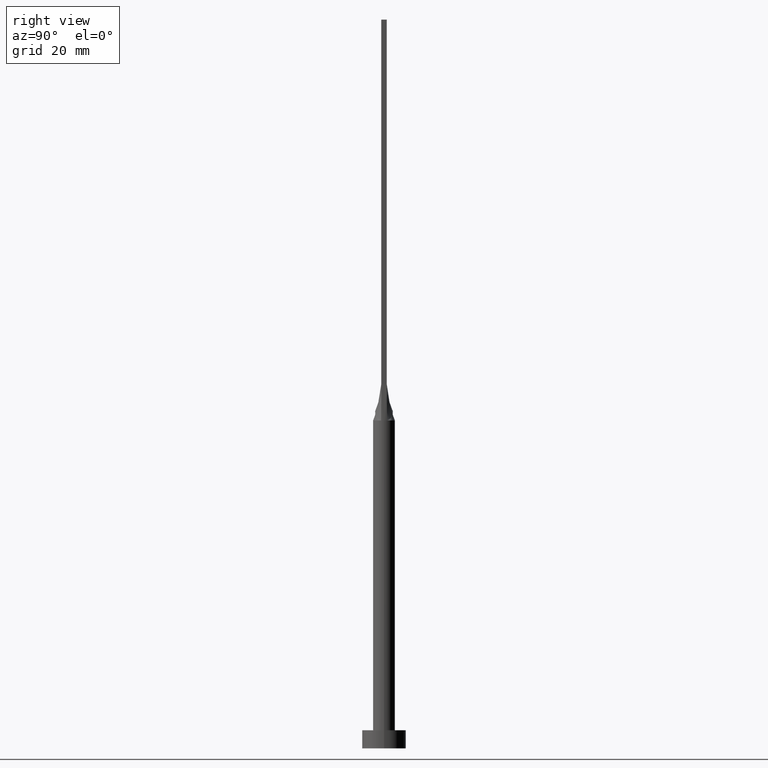
[diagram: clean part render]
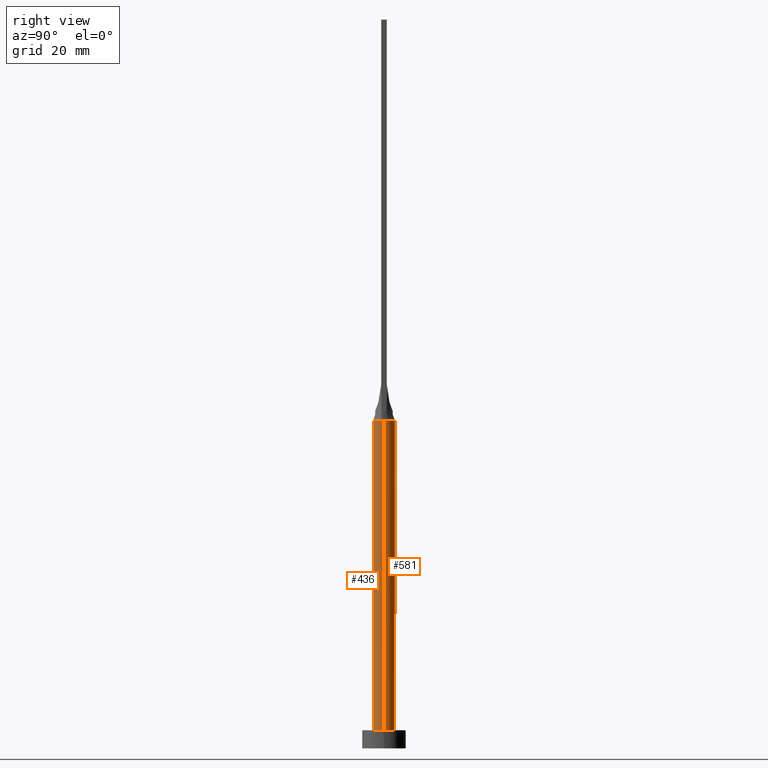
[diagram: same view with one multi-face feature highlighted, each face labeled with its STEP entity id]
A machine part, right view. The highlighted faces form ONE feature: a constant-radius fillet chain: 2 tangent blend faces with common blend radius 3 mm. The faces share edges in the B-rep.
Their STEP definitions:
[1] entity #581 (Cylinder):
#1 = DIRECTION ( 'NONE',  ( 0.000000000000000000, 0.000000000000000000, 1.000000000000000000 ) ) ;
#7 = EDGE_LOOP ( 'NONE', ( #388, #122, #519, #390, #51, #459 ) ) ;
#33 = CYLINDRICAL_SURFACE ( 'NONE', #500, 3.000000000000000444 ) ;
#36 = EDGE_CURVE ( 'NONE', #101, #415, #276, .T. ) ;
#51 = ORIENTED_EDGE ( 'NONE', *, *, #82, .F. ) ;
#57 = CARTESIAN_POINT ( 'NONE',  ( 2.442412046818595250, 1.765588549521970529, 90.00000000000004263 ) ) ;
#59 = LINE ( 'NONE', #252, #324 ) ;
#74 = CARTESIAN_POINT ( 'NONE',  ( 2.894482401701604424, 0.7894050286368272662, 90.00000000000001421 ) ) ;
#78 = AXIS2_PLACEMENT_3D ( 'NONE', #576, #350, #268 ) ;
#82 = EDGE_CURVE ( 'NONE', #415, #153, #200, .T. ) ;
#101 = VERTEX_POINT ( 'NONE', #448 ) ;
#112 = CARTESIAN_POINT ( 'NONE',  ( 3.000000000000000444, 3.673940397442060361E-16, 90.00000000000001421 ) ) ;
#122 = ORIENTED_EDGE ( 'NONE', *, *, #543, .T. ) ;
#130 = DIRECTION ( 'NONE',  ( 1.000000000000000000, 0.000000000000000000, 0.000000000000000000 ) ) ;
#134 = CARTESIAN_POINT ( 'NONE',  ( -1.751288851749021491, 2.458468820606022565, 89.99999999999998579 ) ) ;
#143 = EDGE_CURVE ( 'NONE', #153, #185, #59, .T. ) ;
#144 = CARTESIAN_POINT ( 'NONE',  ( -2.894506632021299541, 0.7894116946786272626, 90.00000000000001421 ) ) ;
#153 = VERTEX_POINT ( 'NONE', #472 ) ;
#174 = VERTEX_POINT ( 'NONE', #202 ) ;
#185 = VERTEX_POINT ( 'NONE', #205 ) ;
#186 = VECTOR ( 'NONE', #465, 1000.000000000000000 ) ;
#187 = EDGE_CURVE ( 'NONE', #269, #101, #441, .T. ) ;
#197 = CARTESIAN_POINT ( 'NONE',  ( -2.894506632021299541, 0.7894116946786272626, 90.00000000000001421 ) ) ;
#200 = CIRCLE ( 'NONE', #284, 3.000000000000000444 ) ;
#202 = CARTESIAN_POINT ( 'NONE',  ( 3.000000000000000444, 3.673940397442060361E-16, 5.000000000000000000 ) ) ;
#203 = CARTESIAN_POINT ( 'NONE',  ( 2.248179627679386172, 2.014142483996539834, 89.99999999999998579 ) ) ;
#205 = CARTESIAN_POINT ( 'NONE',  ( -3.000000000000000444, 0.000000000000000000, 5.000000000000000000 ) ) ;
#224 = CARTESIAN_POINT ( 'NONE',  ( 0.000000000000000000, 0.000000000000000000, 90.00000000000001421 ) ) ;
#225 = DIRECTION ( 'NONE',  ( -0.000000000000000000, -0.000000000000000000, -1.000000000000000000 ) ) ;
#229 = CARTESIAN_POINT ( 'NONE',  ( 0.3818979204996085230, 3.000000000000001332, 90.00000000000001421 ) ) ;
#238 = AXIS2_PLACEMENT_3D ( 'NONE', #479, #526, #130 ) ;
#252 = CARTESIAN_POINT ( 'NONE',  ( -3.000000000000000444, 0.000000000000000000, 90.00000000000001421 ) ) ;
#263 = CARTESIAN_POINT ( 'NONE',  ( -2.733316749964668002, 1.269511353635830453, 90.00000000000004263 ) ) ;
#268 = DIRECTION ( 'NONE',  ( 1.000000000000000000, 0.000000000000000000, 0.000000000000000000 ) ) ;
#269 = VERTEX_POINT ( 'NONE', #494 ) ;
#270 = FACE_OUTER_BOUND ( 'NONE', #7, .T. ) ;
#276 = B_SPLINE_CURVE_WITH_KNOTS ( 'NONE', 3,
 ( #74, #435, #345, #57, #203, #374, #569, #351, #229, #403, #524, #575, #134, #527, #480, #263, #499, #197 ),
 .UNSPECIFIED., .F., .F.,
 ( 4, 2, 2, 2, 2, 2, 2, 2, 4 ),
 ( 0.000000000000000000, 0.1250000000000000000, 0.2500000000000000000, 0.3750000000000000000, 0.5000000000000000000, 0.6250000000000000000, 0.7500000000000000000, 0.8750000000000000000, 1.000000000000000000 ),
 .UNSPECIFIED. ) ;
#283 = DIRECTION ( 'NONE',  ( 1.000000000000000000, 0.000000000000000000, 0.000000000000000000 ) ) ;
#284 = AXIS2_PLACEMENT_3D ( 'NONE', #411, #1, #283 ) ;
#295 = LINE ( 'NONE', #112, #186 ) ;
#324 = VECTOR ( 'NONE', #422, 1000.000000000000000 ) ;
#345 = CARTESIAN_POINT ( 'NONE',  ( 2.733316749964668446, 1.269511353635831341, 90.00000000000002842 ) ) ;
#350 = DIRECTION ( 'NONE',  ( 0.000000000000000000, 0.000000000000000000, 1.000000000000000000 ) ) ;
#351 = CARTESIAN_POINT ( 'NONE',  ( 0.7628506052746800714, 2.924692134573154689, 90.00000000000004263 ) ) ;
#352 = DIRECTION ( 'NONE',  ( -1.000000000000000000, 0.000000000000000000, 0.000000000000000000 ) ) ;
#374 = CARTESIAN_POINT ( 'NONE',  ( 1.751288851749022379, 2.458468820606022565, 89.99999999999997158 ) ) ;
#388 = ORIENTED_EDGE ( 'NONE', *, *, #187, .F. ) ;
#390 = ORIENTED_EDGE ( 'NONE', *, *, #143, .F. ) ;
#403 = CARTESIAN_POINT ( 'NONE',  ( -0.3818979204996078569, 3.000000000000000888, 89.99999999999998579 ) ) ;
#411 = CARTESIAN_POINT ( 'NONE',  ( 0.000000000000000000, 0.000000000000000000, 90.00000000000001421 ) ) ;
#415 = VERTEX_POINT ( 'NONE', #144 ) ;
#422 = DIRECTION ( 'NONE',  ( -0.000000000000000000, -0.000000000000000000, -1.000000000000000000 ) ) ;
#435 = CARTESIAN_POINT ( 'NONE',  ( 2.830829925251657997, 1.022044525068634302, 90.00000000000004263 ) ) ;
#441 = CIRCLE ( 'NONE', #238, 3.000000000000000444 ) ;
#448 = CARTESIAN_POINT ( 'NONE',  ( 2.894482401701604424, 0.7894050286368272662, 90.00000000000001421 ) ) ;
#459 = ORIENTED_EDGE ( 'NONE', *, *, #36, .F. ) ;
#465 = DIRECTION ( 'NONE',  ( -0.000000000000000000, -0.000000000000000000, -1.000000000000000000 ) ) ;
#472 = CARTESIAN_POINT ( 'NONE',  ( -3.000000000000000000, -1.912111867153115409E-16, 90.00000000000001421 ) ) ;
#479 = CARTESIAN_POINT ( 'NONE',  ( 0.000000000000000000, 0.000000000000000000, 90.00000000000001421 ) ) ;
#480 = CARTESIAN_POINT ( 'NONE',  ( -2.442412046818596139, 1.765588549521969641, 90.00000000000004263 ) ) ;
#494 = CARTESIAN_POINT ( 'NONE',  ( 3.000000000000000888, 4.817174831141495148E-17, 90.00000000000001421 ) ) ;
#496 = CIRCLE ( 'NONE', #78, 3.000000000000000444 ) ;
#499 = CARTESIAN_POINT ( 'NONE',  ( -2.830829925251659329, 1.022044525068634302, 90.00000000000005684 ) ) ;
#500 = AXIS2_PLACEMENT_3D ( 'NONE', #224, #225, #352 ) ;
#519 = ORIENTED_EDGE ( 'NONE', *, *, #552, .T. ) ;
#524 = CARTESIAN_POINT ( 'NONE',  ( -0.7628506052746797383, 2.924692134573155133, 90.00000000000002842 ) ) ;
#526 = DIRECTION ( 'NONE',  ( 0.000000000000000000, 0.000000000000000000, 1.000000000000000000 ) ) ;
#527 = CARTESIAN_POINT ( 'NONE',  ( -2.248179627679385728, 2.014142483996540278, 89.99999999999997158 ) ) ;
#543 = EDGE_CURVE ( 'NONE', #269, #174, #295, .T. ) ;
#552 = EDGE_CURVE ( 'NONE', #174, #185, #496, .T. ) ;
#569 = CARTESIAN_POINT ( 'NONE',  ( 1.447928580458859305, 2.653161878569118670, 90.00000000000004263 ) ) ;
#575 = CARTESIAN_POINT ( 'NONE',  ( -1.447928580458858416, 2.653161878569119558, 90.00000000000004263 ) ) ;
#576 = CARTESIAN_POINT ( 'NONE',  ( 0.000000000000000000, 0.000000000000000000, 5.000000000000000000 ) ) ;
#581 = ADVANCED_FACE ( 'NONE', ( #270 ), #33, .T. ) ;
[2] entity #436 (Cylinder):
#12 = CIRCLE ( 'NONE', #311, 3.000000000000000444 ) ;
#31 = CARTESIAN_POINT ( 'NONE',  ( 0.000000000000000000, 0.000000000000000000, 90.00000000000001421 ) ) ;
#39 = CARTESIAN_POINT ( 'NONE',  ( 0.000000000000000000, 0.000000000000000000, 90.00000000000001421 ) ) ;
#59 = LINE ( 'NONE', #252, #324 ) ;
#84 = DIRECTION ( 'NONE',  ( 1.000000000000000000, -5.329070518200751394E-15, 0.000000000000000000 ) ) ;
#87 = ORIENTED_EDGE ( 'NONE', *, *, #98, .T. ) ;
#92 = DIRECTION ( 'NONE',  ( 1.000000000000000000, 0.000000000000000000, 0.000000000000000000 ) ) ;
#94 = DIRECTION ( 'NONE',  ( 1.000000000000000000, 0.000000000000000000, 0.000000000000000000 ) ) ;
#98 = EDGE_CURVE ( 'NONE', #185, #174, #246, .T. ) ;
#112 = CARTESIAN_POINT ( 'NONE',  ( 3.000000000000000444, 3.673940397442060361E-16, 90.00000000000001421 ) ) ;
#117 = VERTEX_POINT ( 'NONE', #513 ) ;
#143 = EDGE_CURVE ( 'NONE', #153, #185, #59, .T. ) ;
#149 = ORIENTED_EDGE ( 'NONE', *, *, #543, .F. ) ;
#153 = VERTEX_POINT ( 'NONE', #472 ) ;
#157 = ORIENTED_EDGE ( 'NONE', *, *, #491, .F. ) ;
#159 = ORIENTED_EDGE ( 'NONE', *, *, #348, .F. ) ;
#168 = EDGE_LOOP ( 'NONE', ( #149, #159, #528, #157, #506, #87 ) ) ;
#169 = DIRECTION ( 'NONE',  ( -1.000000000000000000, 0.000000000000000000, 0.000000000000000000 ) ) ;
#174 = VERTEX_POINT ( 'NONE', #202 ) ;
#185 = VERTEX_POINT ( 'NONE', #205 ) ;
#186 = VECTOR ( 'NONE', #465, 1000.000000000000000 ) ;
#202 = CARTESIAN_POINT ( 'NONE',  ( 3.000000000000000444, 3.673940397442060361E-16, 5.000000000000000000 ) ) ;
#205 = CARTESIAN_POINT ( 'NONE',  ( -3.000000000000000444, 0.000000000000000000, 5.000000000000000000 ) ) ;
#218 = DIRECTION ( 'NONE',  ( 1.000000000000000000, 0.000000000000000000, 0.000000000000000000 ) ) ;
#246 = CIRCLE ( 'NONE', #485, 3.000000000000000444 ) ;
#252 = CARTESIAN_POINT ( 'NONE',  ( -3.000000000000000444, 0.000000000000000000, 90.00000000000001421 ) ) ;
#269 = VERTEX_POINT ( 'NONE', #494 ) ;
#271 = FACE_OUTER_BOUND ( 'NONE', #168, .T. ) ;
#273 = CYLINDRICAL_SURFACE ( 'NONE', #434, 3.000000000000000444 ) ;
#275 = CIRCLE ( 'NONE', #320, 3.000000000000000444 ) ;
#279 = DIRECTION ( 'NONE',  ( -0.000000000000000000, -0.000000000000000000, -1.000000000000000000 ) ) ;
#295 = LINE ( 'NONE', #112, #186 ) ;
#311 = AXIS2_PLACEMENT_3D ( 'NONE', #395, #347, #84 ) ;
#314 = VERTEX_POINT ( 'NONE', #460 ) ;
#316 = CARTESIAN_POINT ( 'NONE',  ( 0.000000000000000000, 0.000000000000000000, 5.000000000000000000 ) ) ;
#320 = AXIS2_PLACEMENT_3D ( 'NONE', #481, #439, #218 ) ;
#324 = VECTOR ( 'NONE', #422, 1000.000000000000000 ) ;
#347 = DIRECTION ( 'NONE',  ( 0.000000000000000000, 0.000000000000000000, 1.000000000000000000 ) ) ;
#348 = EDGE_CURVE ( 'NONE', #117, #269, #12, .T. ) ;
#368 = EDGE_CURVE ( 'NONE', #314, #117, #371, .T. ) ;
#371 = CIRCLE ( 'NONE', #412, 3.000000000000000444 ) ;
#395 = CARTESIAN_POINT ( 'NONE',  ( 0.000000000000000000, 0.000000000000000000, 90.00000000000001421 ) ) ;
#412 = AXIS2_PLACEMENT_3D ( 'NONE', #31, #578, #92 ) ;
#422 = DIRECTION ( 'NONE',  ( -0.000000000000000000, -0.000000000000000000, -1.000000000000000000 ) ) ;
#434 = AXIS2_PLACEMENT_3D ( 'NONE', #39, #279, #169 ) ;
#436 = ADVANCED_FACE ( 'NONE', ( #271 ), #273, .T. ) ;
#439 = DIRECTION ( 'NONE',  ( 0.000000000000000000, 0.000000000000000000, 1.000000000000000000 ) ) ;
#460 = CARTESIAN_POINT ( 'NONE',  ( -2.894489875237701959, -0.7894071376467488577, 90.00000000000001421 ) ) ;
#465 = DIRECTION ( 'NONE',  ( -0.000000000000000000, -0.000000000000000000, -1.000000000000000000 ) ) ;
#472 = CARTESIAN_POINT ( 'NONE',  ( -3.000000000000000000, -1.912111867153115409E-16, 90.00000000000001421 ) ) ;
#481 = CARTESIAN_POINT ( 'NONE',  ( 0.000000000000000000, 0.000000000000000000, 90.00000000000001421 ) ) ;
#485 = AXIS2_PLACEMENT_3D ( 'NONE', #316, #492, #94 ) ;
#491 = EDGE_CURVE ( 'NONE', #153, #314, #275, .T. ) ;
#492 = DIRECTION ( 'NONE',  ( 0.000000000000000000, 0.000000000000000000, 1.000000000000000000 ) ) ;
#494 = CARTESIAN_POINT ( 'NONE',  ( 3.000000000000000888, 4.817174831141495148E-17, 90.00000000000001421 ) ) ;
#506 = ORIENTED_EDGE ( 'NONE', *, *, #143, .T. ) ;
#513 = CARTESIAN_POINT ( 'NONE',  ( 2.894514141151844910, -0.7894138151126538494, 90.00000000000001421 ) ) ;
#528 = ORIENTED_EDGE ( 'NONE', *, *, #368, .F. ) ;
#543 = EDGE_CURVE ( 'NONE', #269, #174, #295, .T. ) ;
#578 = DIRECTION ( 'NONE',  ( 0.000000000000000000, 0.000000000000000000, 1.000000000000000000 ) ) ;